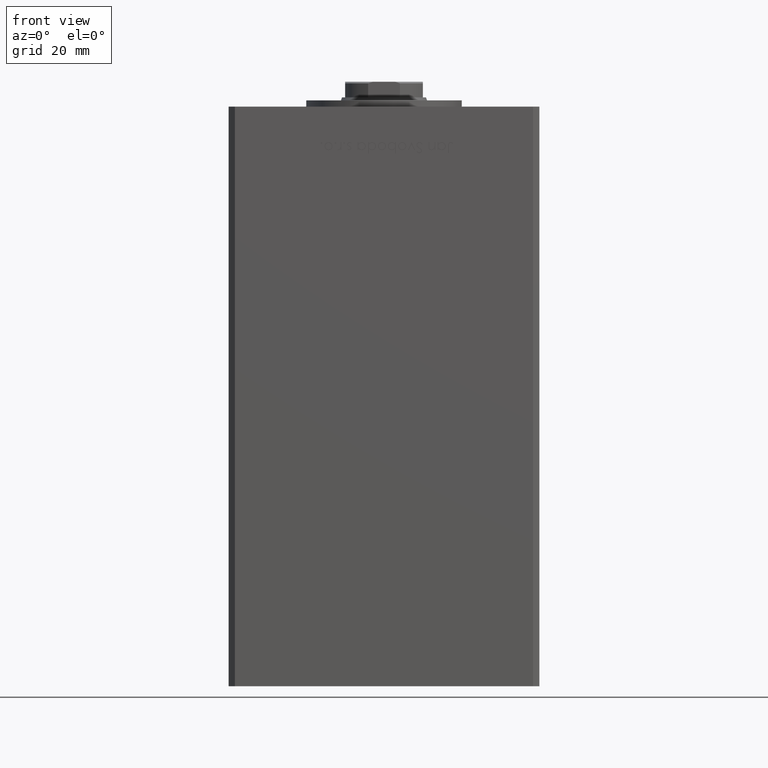
[diagram: clean part render]
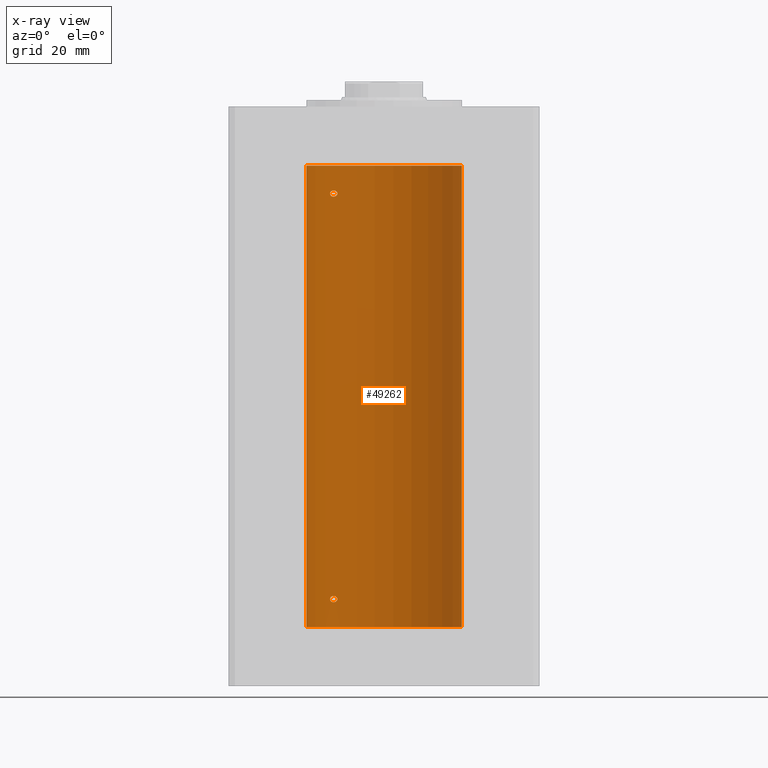
[diagram: x-ray — body ghosted, one internal face saturated and labeled with its STEP entity id]
A machine part, front view, then the same camera in x-ray: the body is ghosted and one INTERNAL B-rep face — a face not visible from any outside direction — is saturated and labeled: STEP entity #49262.
In plain terms, the highlighted cylindrical surface (partial cylindrical patch) has radius 25 mm, axis along (-0, -0, -1).
Its self-contained STEP definition (entity closure, byte-faithful):
#634 = CARTESIAN_POINT ( 'NONE',  ( -17.05249165747619955, 18.28208333366437088, 8.292219220036422200 ) ) ;
#906 = CARTESIAN_POINT ( 'NONE',  ( -15.00000000000018119, 20.00000000000001421, 139.4159474586024032 ) ) ;
#1173 = CARTESIAN_POINT ( 'NONE',  ( -15.01482636753733146, 19.98889854010115741, 139.3312026610076941 ) ) ;
#1595 = EDGE_CURVE ( 'NONE', #20501, #5051, #30089, .T. ) ;
#2494 = B_SPLINE_CURVE_WITH_KNOTS ( 'NONE', 3,
 ( #39827, #24076, #15684, #35892, #27252, #7568, #51384, #31437, #15427, #47435, #19115, #28016, #23317, #39320, #35127, #23068, #3618, #35636, #11250, #11503 ),
 .UNSPECIFIED., .F., .F.,
 ( 4, 2, 2, 2, 2, 2, 2, 2, 2, 4 ),
 ( 0.004032696862986557759, 0.004284699222246954667, 0.004536701581507351574, 0.005040706300028082940, 0.005544711018548810835, 0.006048715737069539598, 0.007056725174110996257, 0.007308727533371349797, 0.007560729892631701601, 0.008064734611152412150 ),
 .UNSPECIFIED. ) ;
#2792 = CARTESIAN_POINT ( 'NONE',  ( -15.23594348686699895, 19.82115246225716376, 9.588721932685826843 ) ) ;
#3561 = CARTESIAN_POINT ( 'NONE',  ( -15.95796937689561013, 19.24499537862566712, 9.975773099652194276 ) ) ;
#3618 = CARTESIAN_POINT ( 'NONE',  ( -17.19010376497220705, 18.15221652163111088, 140.0356701235680248 ) ) ;
#4842 = CARTESIAN_POINT ( 'NONE',  ( -16.83415218046512152, 18.48332662461726272, 8.134317266281161807 ) ) ;
#5051 = VERTEX_POINT ( 'NONE', #24020 ) ;
#5121 = ORIENTED_EDGE ( 'NONE', *, *, #20367, .F. ) ;
#5564 = EDGE_CURVE ( 'NONE', #40371, #45202, #31233, .T. ) ;
#5643 = CARTESIAN_POINT ( 'NONE',  ( -16.34293146994552259, 18.91921593628409681, 138.4973425906726163 ) ) ;
#5814 = DIRECTION ( 'NONE',  ( 1.000000000000000000, 0.000000000000000000, 0.000000000000000000 ) ) ;
#6664 = CARTESIAN_POINT ( 'NONE',  ( -15.34666241858317903, 19.73581294411416209, 8.312122460537615609 ) ) ;
#6675 = CARTESIAN_POINT ( 'NONE',  ( -14.99999999999999112, 20.00000000000000711, 139.4999999999999716 ) ) ;
#6691 = ORIENTED_EDGE ( 'NONE', *, *, #32081, .T. ) ;
#6744 = CARTESIAN_POINT ( 'NONE',  ( -15.01476641895661679, 19.98894406010708380, 9.168794563401341691 ) ) ;
#6917 = CARTESIAN_POINT ( 'NONE',  ( -15.01482636753732791, 19.98889854010116096, 8.831202661007704791 ) ) ;
#7517 = CARTESIAN_POINT ( 'NONE',  ( -15.58230678163760530, 19.55030131031898577, 9.843739486702938635 ) ) ;
#7568 = CARTESIAN_POINT ( 'NONE',  ( -15.23594348686699185, 19.82115246225716021, 140.0887219326858144 ) ) ;
#9063 = CARTESIAN_POINT ( 'NONE',  ( -17.05249165747618534, 18.28208333366438509, 138.7922192200364009 ) ) ;
#9823 = CARTESIAN_POINT ( 'NONE',  ( -15.06722189748647622, 19.94943357555938945, 8.675980324878882044 ) ) ;
#10097 = CARTESIAN_POINT ( 'NONE',  ( -17.34935157289747210, 18.00000000000002132, 139.3289983604257998 ) ) ;
#10572 = FACE_OUTER_BOUND ( 'NONE', #16959, .T. ) ;
#10676 = EDGE_CURVE ( 'NONE', #40371, #18494, #35224, .T. ) ;
#11154 = CARTESIAN_POINT ( 'NONE',  ( -17.34935157289806185, 17.99999999999981526, 139.5000000000000853 ) ) ;
#11197 = CARTESIAN_POINT ( 'NONE',  ( -17.14593038898729560, 18.19399314418734548, 9.595944883196500186 ) ) ;
#11250 = CARTESIAN_POINT ( 'NONE',  ( -17.34935157289746854, 18.00000000000001421, 139.6709736906063029 ) ) ;
#11451 = CARTESIAN_POINT ( 'NONE',  ( -15.10490800566735814, 19.92096305044240978, 9.396293174044259899 ) ) ;
#11503 = CARTESIAN_POINT ( 'NONE',  ( -17.34935157289806185, 17.99999999999981526, 139.5000000000000853 ) ) ;
#11590 = ORIENTED_EDGE ( 'NONE', *, *, #10676, .F. ) ;
#11820 = DIRECTION ( 'NONE',  ( 1.000000000000000000, 0.000000000000000000, 0.000000000000000000 ) ) ;
#12863 = VECTOR ( 'NONE', #51806, 1000.000000000000000 ) ;
#12983 = CARTESIAN_POINT ( 'NONE',  ( -17.30269557861142360, 18.04515136187502122, 8.666042081755742643 ) ) ;
#13253 = CARTESIAN_POINT ( 'NONE',  ( -15.23538646979298505, 19.82157806413532697, 138.9119998952827757 ) ) ;
#13755 = CARTESIAN_POINT ( 'NONE',  ( -14.99999999999999112, 20.00000000000001066, 9.000000000000000000 ) ) ;
#14034 = CARTESIAN_POINT ( 'NONE',  ( -15.58164749401199956, 19.55082150006405328, 138.6566780726851675 ) ) ;
#14342 = CARTESIAN_POINT ( 'NONE',  ( -16.72476285461318568, 18.58415905903082788, 9.944944760795701555 ) ) ;
#14519 = CARTESIAN_POINT ( 'NONE',  ( -15.95808436639360295, 19.24489366819300429, 8.024260878849535317 ) ) ;
#14577 = ORIENTED_EDGE ( 'NONE', *, *, #1595, .F. ) ;
#14865 = CARTESIAN_POINT ( 'NONE',  ( -16.46913072925703148, 18.81168496547890712, 10.00577755881140618 ) ) ;
#15372 = CARTESIAN_POINT ( 'NONE',  ( -14.99999999999999112, 20.00000000000001066, 9.000000000000000000 ) ) ;
#15419 = VECTOR ( 'NONE', #19988, 1000.000000000000000 ) ;
#15427 = CARTESIAN_POINT ( 'NONE',  ( -15.70535969280552280, 19.45169171760802485, 140.3989607721124457 ) ) ;
#15646 = EDGE_LOOP ( 'NONE', ( #14577, #49488 ) ) ;
#15674 = CARTESIAN_POINT ( 'NONE',  ( 25.00000000000000000, 3.061616997868383043E-15, 148.5000000000000000 ) ) ;
#15684 = CARTESIAN_POINT ( 'NONE',  ( -15.01476641895662567, 19.98894406010707314, 139.6687945634013204 ) ) ;
#16448 = CIRCLE ( 'NONE', #50819, 25.00000000000000000 ) ;
#16651 = CARTESIAN_POINT ( 'NONE',  ( -16.71492528194902860, 18.59135325782701287, 8.080141558342052832 ) ) ;
#16959 = EDGE_LOOP ( 'NONE', ( #11590, #51559, #6691, #28812 ) ) ;
#17581 = CARTESIAN_POINT ( 'NONE',  ( -17.34935157289806895, 17.99999999999981526, 9.000000000000094147 ) ) ;
#18494 = VERTEX_POINT ( 'NONE', #24706 ) ;
#18546 = CARTESIAN_POINT ( 'NONE',  ( -17.30163983552689899, 18.04615713653367592, 9.336007472727789747 ) ) ;
#18807 = CARTESIAN_POINT ( 'NONE',  ( -17.34935157289747210, 18.00000000000001421, 9.170973690606336604 ) ) ;
#19115 = CARTESIAN_POINT ( 'NONE',  ( -16.08745393861402917, 19.13692152169251059, 140.4965015099868992 ) ) ;
#19988 = DIRECTION ( 'NONE',  ( -0.000000000000000000, -0.000000000000000000, -1.000000000000000000 ) ) ;
#20236 = EDGE_CURVE ( 'NONE', #5051, #20501, #32953, .T. ) ;
#20367 = EDGE_CURVE ( 'NONE', #34639, #42620, #37869, .T. ) ;
#20501 = VERTEX_POINT ( 'NONE', #17581 ) ;
#20594 = CARTESIAN_POINT ( 'NONE',  ( -17.34935157289806895, 17.99999999999981526, 9.000000000000094147 ) ) ;
#21117 = CARTESIAN_POINT ( 'NONE',  ( -17.15234217094406333, 18.18812579706696653, 138.8965730437749926 ) ) ;
#21885 = CARTESIAN_POINT ( 'NONE',  ( -15.58164749401199956, 19.55082150006405683, 8.156678072685190628 ) ) ;
#22410 = CARTESIAN_POINT ( 'NONE',  ( -15.10490010356604174, 19.92096840819820258, 8.603766671322523152 ) ) ;
#22494 = CARTESIAN_POINT ( 'NONE',  ( -15.00000000000018829, 20.00000000000001776, 9.084038803624167713 ) ) ;
#23012 = CARTESIAN_POINT ( 'NONE',  ( -17.19010376497221060, 18.15221652163110377, 9.535670123568005252 ) ) ;
#23068 = CARTESIAN_POINT ( 'NONE',  ( -17.14593038898727428, 18.19399314418736324, 140.0959448831964949 ) ) ;
#23317 = CARTESIAN_POINT ( 'NONE',  ( -16.72476285461317502, 18.58415905903083498, 140.4449447607956927 ) ) ;
#23404 = DIRECTION ( 'NONE',  ( -0.000000000000000000, -0.000000000000000000, -1.000000000000000000 ) ) ;
#24020 = CARTESIAN_POINT ( 'NONE',  ( -14.99999999999999112, 20.00000000000001066, 9.000000000000000000 ) ) ;
#24076 = CARTESIAN_POINT ( 'NONE',  ( -15.00000000000018474, 20.00000000000002487, 139.5840388036241393 ) ) ;
#24239 = VERTEX_POINT ( 'NONE', #29069 ) ;
#24706 = CARTESIAN_POINT ( 'NONE',  ( 25.00000000000000000, 3.061616997868383043E-15, 0.000000000000000000 ) ) ;
#25064 = CARTESIAN_POINT ( 'NONE',  ( -16.71492528194901794, 18.59135325782701642, 138.5801415583420351 ) ) ;
#25588 = CARTESIAN_POINT ( 'NONE',  ( -15.70664578139651546, 19.45064696206092947, 138.6005795994921073 ) ) ;
#25761 = DIRECTION ( 'NONE',  ( -0.000000000000000000, 0.000000000000000000, 1.000000000000000000 ) ) ;
#26101 = CARTESIAN_POINT ( 'NONE',  ( -15.10490010356605595, 19.92096840819819903, 139.1037666713224610 ) ) ;
#26602 = CARTESIAN_POINT ( 'NONE',  ( -15.00000000000019007, 20.00000000000002842, 8.915947458602436981 ) ) ;
#27252 = CARTESIAN_POINT ( 'NONE',  ( -15.10490800566735103, 19.92096305044241689, 139.8962931740442173 ) ) ;
#27910 = EDGE_LOOP ( 'NONE', ( #5121, #35805 ) ) ;
#27916 = LINE ( 'NONE', #47599, #12863 ) ;
#28016 = CARTESIAN_POINT ( 'NONE',  ( -16.46913072925702792, 18.81168496547891777, 140.5057775588114168 ) ) ;
#28711 = CARTESIAN_POINT ( 'NONE',  ( -16.34293146994553680, 18.91921593628409681, 7.997342590672627871 ) ) ;
#28812 = ORIENTED_EDGE ( 'NONE', *, *, #40205, .F. ) ;
#28994 = CARTESIAN_POINT ( 'NONE',  ( -14.99999999999999112, 20.00000000000000711, 139.4999999999999716 ) ) ;
#29069 = CARTESIAN_POINT ( 'NONE',  ( -25.00000000000000000, 0.000000000000000000, 0.000000000000000000 ) ) ;
#29509 = CARTESIAN_POINT ( 'NONE',  ( -16.46844752485324648, 18.81003400474354947, 138.5115443190389044 ) ) ;
#30089 = B_SPLINE_CURVE_WITH_KNOTS ( 'NONE', 3,
 ( #20594, #48917, #12983, #36590, #634, #4842, #16651, #48646, #28711, #38658, #14519, #30534, #21885, #6664, #50222, #22410, #9823, #6917, #26602, #13755 ),
 .UNSPECIFIED., .F., .F.,
 ( 4, 2, 2, 2, 2, 2, 2, 2, 2, 4 ),
 ( 1.994630283518400476E-16, 0.0005040871078734959028, 0.001008174215746792312, 0.001512261323620088830, 0.002016348431493385131, 0.002520435539366681216, 0.003024522647239978167, 0.003528609755113274252, 0.003780653309049923812, 0.004032696862986573372 ),
 .UNSPECIFIED. ) ;
#30534 = CARTESIAN_POINT ( 'NONE',  ( -15.70664578139651191, 19.45064696206092947, 8.100579599492109040 ) ) ;
#30764 = DIRECTION ( 'NONE',  ( -1.000000000000000000, 0.000000000000000000, 0.000000000000000000 ) ) ;
#31233 = CIRCLE ( 'NONE', #47149, 25.00000000000000000 ) ;
#31437 = CARTESIAN_POINT ( 'NONE',  ( -15.58230678163759642, 19.55030131031898577, 140.3437394867029582 ) ) ;
#32081 = EDGE_CURVE ( 'NONE', #45202, #24239, #27916, .T. ) ;
#32953 = B_SPLINE_CURVE_WITH_KNOTS ( 'NONE', 3,
 ( #15372, #22494, #6744, #43449, #11451, #2792, #38491, #7517, #46873, #3561, #34555, #14865, #14342, #43195, #35320, #11197, #23012, #18546, #18807, #50557 ),
 .UNSPECIFIED., .F., .F.,
 ( 4, 2, 2, 2, 2, 2, 2, 2, 2, 4 ),
 ( 0.004032696862986573372, 0.004284699222246939054, 0.004536701581507305604, 0.005040706300028038704, 0.005544711018548771804, 0.006048715737069505771, 0.007056725174110978910, 0.007308727533371345460, 0.007560729892631712010, 0.008064734611152450314 ),
 .UNSPECIFIED. ) ;
#33198 = CARTESIAN_POINT ( 'NONE',  ( -17.30269557861141294, 18.04515136187502478, 139.1660420817557053 ) ) ;
#33460 = CARTESIAN_POINT ( 'NONE',  ( -15.95808436639360117, 19.24489366819300784, 138.5242608788495602 ) ) ;
#33713 = CARTESIAN_POINT ( 'NONE',  ( -16.83415218046510731, 18.48332662461726983, 138.6343172662811298 ) ) ;
#34390 = CARTESIAN_POINT ( 'NONE',  ( -25.00000000000000000, 0.000000000000000000, 148.5000000000000000 ) ) ;
#34555 = CARTESIAN_POINT ( 'NONE',  ( -16.08745393861402917, 19.13692152169249994, 9.996501509986932987 ) ) ;
#34639 = VERTEX_POINT ( 'NONE', #11154 ) ;
#35127 = CARTESIAN_POINT ( 'NONE',  ( -17.05007833789892047, 18.28384926940287869, 140.2013739990121621 ) ) ;
#35224 = LINE ( 'NONE', #43855, #15419 ) ;
#35320 = CARTESIAN_POINT ( 'NONE',  ( -17.05007833789893112, 18.28384926940286093, 9.701373999012139038 ) ) ;
#35636 = CARTESIAN_POINT ( 'NONE',  ( -17.30163983552688833, 18.04615713653367948, 139.8360074727277720 ) ) ;
#35805 = ORIENTED_EDGE ( 'NONE', *, *, #36403, .F. ) ;
#35852 = AXIS2_PLACEMENT_3D ( 'NONE', #38896, #23404, #30764 ) ;
#35892 = CARTESIAN_POINT ( 'NONE',  ( -15.06763582406798818, 19.94912143246363811, 139.8250699387717475 ) ) ;
#36403 = EDGE_CURVE ( 'NONE', #42620, #34639, #2494, .T. ) ;
#36590 = CARTESIAN_POINT ( 'NONE',  ( -17.15234217094407043, 18.18812579706695232, 8.396573043774958833 ) ) ;
#37128 = CARTESIAN_POINT ( 'NONE',  ( -15.06722189748648866, 19.94943357555938590, 139.1759803248788785 ) ) ;
#37869 = B_SPLINE_CURVE_WITH_KNOTS ( 'NONE', 3,
 ( #46041, #10097, #33198, #21117, #9063, #33713, #25064, #29509, #5643, #49975, #33460, #25588, #14034, #41324, #13253, #26101, #37128, #1173, #906, #28994 ),
 .UNSPECIFIED., .F., .F.,
 ( 4, 2, 2, 2, 2, 2, 2, 2, 2, 4 ),
 ( 2.254873622441466949E-16, 0.0005040871078735091300, 0.001008174215746792746, 0.001512261323620076470, 0.002016348431493359978, 0.002520435539366643485, 0.003024522647239927427, 0.003528609755113210501, 0.003780653309049884347, 0.004032696862986557759 ),
 .UNSPECIFIED. ) ;
#38491 = CARTESIAN_POINT ( 'NONE',  ( -15.34624284195506583, 19.73614442075939479, 9.687618531851304837 ) ) ;
#38658 = CARTESIAN_POINT ( 'NONE',  ( -16.08757264251632790, 19.13682698743033939, 8.003442765848200580 ) ) ;
#38896 = CARTESIAN_POINT ( 'NONE',  ( 0.000000000000000000, 0.000000000000000000, 148.5000000000000000 ) ) ;
#39153 = FACE_BOUND ( 'NONE', #27910, .T. ) ;
#39320 = CARTESIAN_POINT ( 'NONE',  ( -16.99843849356149050, 18.33190197607055794, 140.2468335145756839 ) ) ;
#39827 = CARTESIAN_POINT ( 'NONE',  ( -14.99999999999999112, 20.00000000000000711, 139.4999999999999716 ) ) ;
#40205 = EDGE_CURVE ( 'NONE', #18494, #24239, #16448, .T. ) ;
#40371 = VERTEX_POINT ( 'NONE', #15674 ) ;
#40414 = DIRECTION ( 'NONE',  ( -0.000000000000000000, 0.000000000000000000, 1.000000000000000000 ) ) ;
#41324 = CARTESIAN_POINT ( 'NONE',  ( -15.34666241858318259, 19.73581294411415854, 138.8121224605375517 ) ) ;
#42565 = FACE_BOUND ( 'NONE', #15646, .T. ) ;
#42620 = VERTEX_POINT ( 'NONE', #6675 ) ;
#43195 = CARTESIAN_POINT ( 'NONE',  ( -16.99843849356148695, 18.33190197607054372, 9.746833514575657276 ) ) ;
#43449 = CARTESIAN_POINT ( 'NONE',  ( -15.06763582406798463, 19.94912143246364522, 9.325069938771754607 ) ) ;
#43855 = CARTESIAN_POINT ( 'NONE',  ( 25.00000000000000000, 3.061616997868383043E-15, 148.5000000000000000 ) ) ;
#45202 = VERTEX_POINT ( 'NONE', #34390 ) ;
#45693 = CARTESIAN_POINT ( 'NONE',  ( 0.000000000000000000, 0.000000000000000000, 0.000000000000000000 ) ) ;
#46041 = CARTESIAN_POINT ( 'NONE',  ( -17.34935157289806185, 17.99999999999981526, 139.5000000000000853 ) ) ;
#46873 = CARTESIAN_POINT ( 'NONE',  ( -15.70535969280553346, 19.45169171760802840, 9.898960772112497253 ) ) ;
#47149 = AXIS2_PLACEMENT_3D ( 'NONE', #47758, #40414, #11820 ) ;
#47272 = CYLINDRICAL_SURFACE ( 'NONE', #35852, 25.00000000000000000 ) ;
#47435 = CARTESIAN_POINT ( 'NONE',  ( -15.95796937689560480, 19.24499537862567422, 140.4757730996521730 ) ) ;
#47599 = CARTESIAN_POINT ( 'NONE',  ( -25.00000000000000000, 0.000000000000000000, 148.5000000000000000 ) ) ;
#47758 = CARTESIAN_POINT ( 'NONE',  ( 0.000000000000000000, 0.000000000000000000, 148.5000000000000000 ) ) ;
#48646 = CARTESIAN_POINT ( 'NONE',  ( -16.46844752485326069, 18.81003400474354237, 8.011544319038929274 ) ) ;
#48917 = CARTESIAN_POINT ( 'NONE',  ( -17.34935157289747210, 18.00000000000001066, 8.828998360425808656 ) ) ;
#49262 = ADVANCED_FACE ( 'NONE', ( #10572, #42565, #39153 ), #47272, .F. ) ;
#49488 = ORIENTED_EDGE ( 'NONE', *, *, #20236, .F. ) ;
#49975 = CARTESIAN_POINT ( 'NONE',  ( -16.08757264251632080, 19.13682698743034649, 138.5034427658481775 ) ) ;
#50222 = CARTESIAN_POINT ( 'NONE',  ( -15.23538646979297440, 19.82157806413534118, 8.411999895282772144 ) ) ;
#50557 = CARTESIAN_POINT ( 'NONE',  ( -17.34935157289806895, 17.99999999999981526, 9.000000000000094147 ) ) ;
#50819 = AXIS2_PLACEMENT_3D ( 'NONE', #45693, #25761, #5814 ) ;
#51384 = CARTESIAN_POINT ( 'NONE',  ( -15.34624284195505162, 19.73614442075940190, 140.1876185318512853 ) ) ;
#51559 = ORIENTED_EDGE ( 'NONE', *, *, #5564, .T. ) ;
#51806 = DIRECTION ( 'NONE',  ( -0.000000000000000000, -0.000000000000000000, -1.000000000000000000 ) ) ;